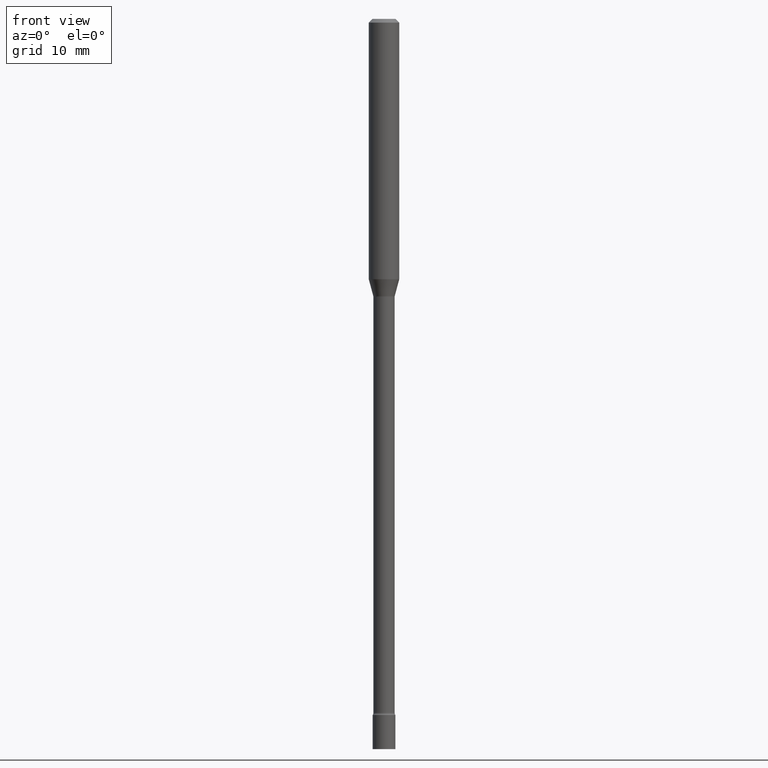
[diagram: clean part render]
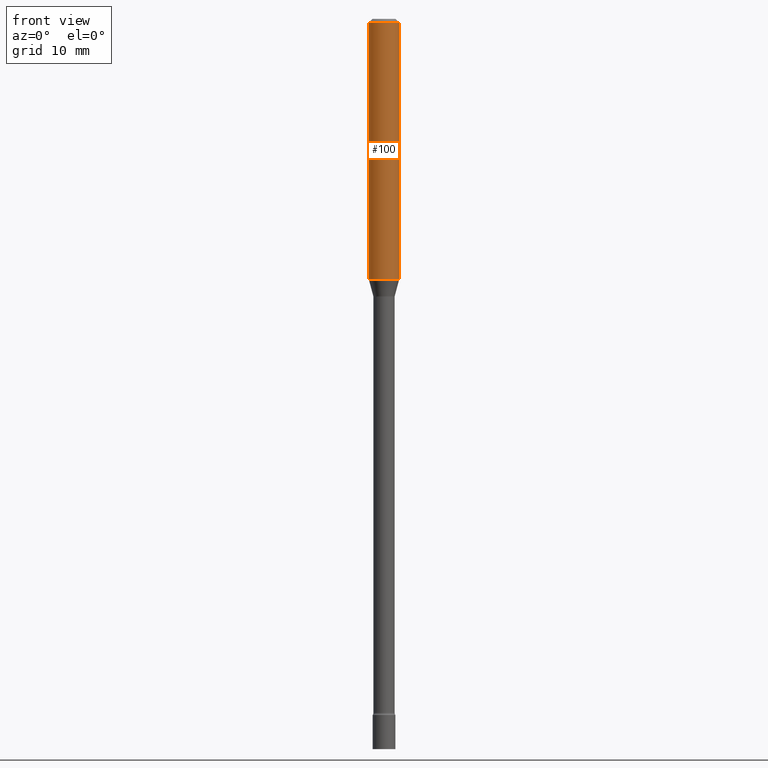
[diagram: same view with one face highlighted and labeled with its STEP entity id]
A machine part, front view. The second image highlights one B-rep face of the part: STEP entity #100.
In plain terms, the highlighted cylindrical surface (edge-blend (fillet) strip) has radius 1.5875 mm, axis along (-0, 0, 1).
Its self-contained STEP definition (entity closure, byte-faithful):
#12 = DIRECTION ( 'NONE',  ( -2.445468806185136597E-29, 3.491481338843145583E-15, 1.000000000000000000 ) ) ;
#16 = DIRECTION ( 'NONE',  ( -2.445468806185136597E-29, 3.491481338843145583E-15, 1.000000000000000000 ) ) ;
#21 = CARTESIAN_POINT ( 'NONE',  ( -0.06250000000000000000, -1.449755637279586850E-15, -0.01500000000000003067 ) ) ;
#23 = ORIENTED_EDGE ( 'NONE', *, *, #308, .F. ) ;
#51 = EDGE_CURVE ( 'NONE', #511, #341, #425, .T. ) ;
#54 = DIRECTION ( 'NONE',  ( 1.000000000000000000, -6.982962677686266711E-15, 4.876176775795935793E-29 ) ) ;
#81 = DIRECTION ( 'NONE',  ( -2.445468806185136597E-29, 3.491481338843145583E-15, 1.000000000000000000 ) ) ;
#100 = ADVANCED_FACE ( 'NONE', ( #217 ), #339, .T. ) ;
#144 = CARTESIAN_POINT ( 'NONE',  ( 0.06250000000000000000, -4.888073874380389458E-16, -0.01500000000000003067 ) ) ;
#154 = CARTESIAN_POINT ( 'NONE',  ( 3.668203209277712094E-31, -5.237222008264728876E-17, -0.01500000000000003067 ) ) ;
#169 = ORIENTED_EDGE ( 'NONE', *, *, #457, .T. ) ;
#192 = VECTOR ( 'NONE', #251, 39.37007874015748143 ) ;
#193 = LINE ( 'NONE', #395, #452 ) ;
#217 = FACE_OUTER_BOUND ( 'NONE', #384, .T. ) ;
#219 = ORIENTED_EDGE ( 'NONE', *, *, #488, .T. ) ;
#249 = CARTESIAN_POINT ( 'NONE',  ( 0.000000000000000000, 0.000000000000000000, 0.000000000000000000 ) ) ;
#251 = DIRECTION ( 'NONE',  ( -2.445468806185136877E-29, 3.491481338843145188E-15, 1.000000000000000000 ) ) ;
#285 = DIRECTION ( 'NONE',  ( 1.000000000000000000, -6.982962677686266711E-15, 0.000000000000000000 ) ) ;
#291 = CARTESIAN_POINT ( 'NONE',  ( 2.616254098990511009E-29, -3.735317474176651459E-15, -1.069837444817705263 ) ) ;
#298 = VERTEX_POINT ( 'NONE', #477 ) ;
#300 = AXIS2_PLACEMENT_3D ( 'NONE', #291, #12, #330 ) ;
#308 = EDGE_CURVE ( 'NONE', #298, #511, #193, .T. ) ;
#309 = CIRCLE ( 'NONE', #300, 0.06250000000000000000 ) ;
#312 = DIRECTION ( 'NONE',  ( -2.445468806185136877E-29, 3.491481338843145188E-15, 1.000000000000000000 ) ) ;
#330 = DIRECTION ( 'NONE',  ( 1.000000000000000000, -6.982962677686270655E-15, 0.000000000000000000 ) ) ;
#339 = CYLINDRICAL_SURFACE ( 'NONE', #358, 0.06250000000000000000 ) ;
#341 = VERTEX_POINT ( 'NONE', #144 ) ;
#350 = LINE ( 'NONE', #377, #192 ) ;
#358 = AXIS2_PLACEMENT_3D ( 'NONE', #249, #16, #54 ) ;
#377 = CARTESIAN_POINT ( 'NONE',  ( 0.06250000000000000000, -4.364351673553916694E-16, 3.047610484872459871E-30 ) ) ;
#381 = AXIS2_PLACEMENT_3D ( 'NONE', #154, #81, #285 ) ;
#384 = EDGE_LOOP ( 'NONE', ( #23, #169, #219, #453 ) ) ;
#389 = CARTESIAN_POINT ( 'NONE',  ( 0.06250000000000000000, -4.171752641532043129E-15, -1.069837444817705263 ) ) ;
#395 = CARTESIAN_POINT ( 'NONE',  ( -0.06250000000000000000, 4.440892098500626162E-16, -3.074334431409316114E-30 ) ) ;
#425 = CIRCLE ( 'NONE', #381, 0.06250000000000000000 ) ;
#452 = VECTOR ( 'NONE', #312, 39.37007874015748143 ) ;
#453 = ORIENTED_EDGE ( 'NONE', *, *, #51, .F. ) ;
#457 = EDGE_CURVE ( 'NONE', #298, #468, #309, .T. ) ;
#468 = VERTEX_POINT ( 'NONE', #389 ) ;
#477 = CARTESIAN_POINT ( 'NONE',  ( -0.06250000000000000000, -3.291228264326588843E-15, -1.069837444817705263 ) ) ;
#488 = EDGE_CURVE ( 'NONE', #468, #341, #350, .T. ) ;
#511 = VERTEX_POINT ( 'NONE', #21 ) ;